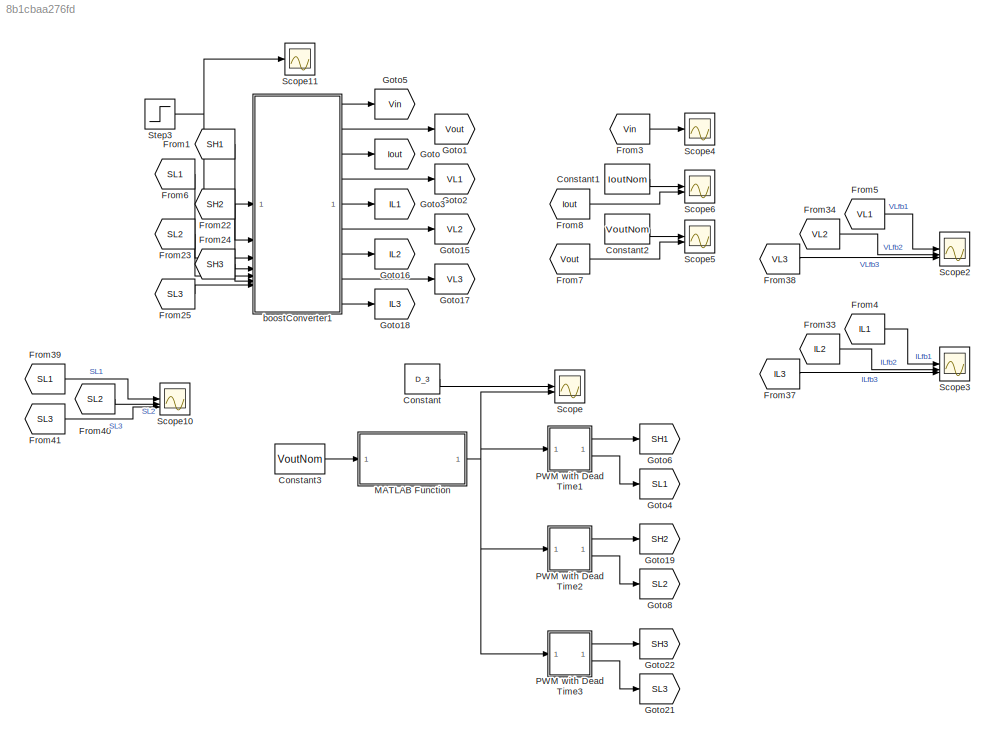
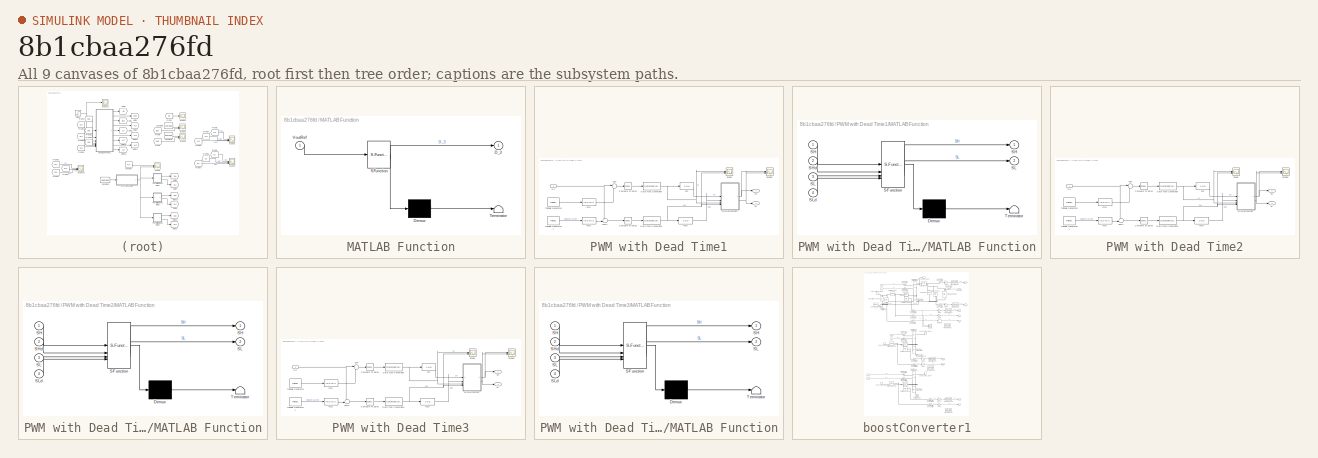
[diagram: thumbnail index - all 9 canvases of the model, root first then tree order]
MODEL slx_8b1cbaa276fd
KIND model
CONFIG AbsTol = auto
CONFIG EnableMultiTasking = off
CONFIG FixedStep = Tstep
CONFIG MaxStep = auto
CONFIG MinStep = auto
CONFIG RelTol = 1e-3
CONFIG SampleTimeConstraint = Unconstrained
CONFIG SolverName = ode14x
CONFIG StartTime = 0.0
CONFIG StopTime = 0.1
BLOCK [Constant] Constant
  Value = D_3
BLOCK [Constant] Constant1
  Value = IoutNom
BLOCK [Constant] Constant2
  Value = VoutNom
BLOCK [Constant] Constant3
  Value = VoutNom
BLOCK [From] From1
  GotoTag = SH1
BLOCK [From] From22
  GotoTag = SH2
BLOCK [From] From23
  GotoTag = SL2
BLOCK [From] From24
  GotoTag = SH3
BLOCK [From] From25
  GotoTag = SL3
BLOCK [From] From3
  GotoTag = Vin
BLOCK [From] From33
  GotoTag = IL2
BLOCK [From] From34
  GotoTag = VL2
BLOCK [From] From37
  GotoTag = IL3
BLOCK [From] From38
  GotoTag = VL3
BLOCK [From] From39
  GotoTag = SL1
BLOCK [From] From4
  GotoTag = IL1
BLOCK [From] From40
  GotoTag = SL2
BLOCK [From] From41
  GotoTag = SL3
BLOCK [From] From5
  GotoTag = VL1
BLOCK [From] From6
  GotoTag = SL1
BLOCK [From] From7
  GotoTag = Vout
BLOCK [From] From8
  GotoTag = Iout
BLOCK [Goto] Goto
  GotoTag = Iout
BLOCK [Goto] Goto1
  GotoTag = Vout
BLOCK [Goto] Goto15
  GotoTag = VL2
BLOCK [Goto] Goto16
  GotoTag = IL2
BLOCK [Goto] Goto17
  GotoTag = VL3
BLOCK [Goto] Goto18
  GotoTag = IL3
BLOCK [Goto] Goto19
  GotoTag = SH2
BLOCK [Goto] Goto2
  GotoTag = VL1
BLOCK [Goto] Goto21
  GotoTag = SL3
BLOCK [Goto] Goto22
  GotoTag = SH3
BLOCK [Goto] Goto3
  GotoTag = IL1
BLOCK [Goto] Goto4
  GotoTag = SL1
BLOCK [Goto] Goto5
  GotoTag = Vin
BLOCK [Goto] Goto6
  GotoTag = SH1
BLOCK [Goto] Goto8
  GotoTag = SL2
BLOCK [SubSystem] MATLAB Function
  ErrorFcn = Stateflow.Translate.translate
  PermitHierarchicalResolution = ExplicitOnly
  SFBlockType = MATLAB Function
  TreatAsAtomicUnit = on
BLOCK [Demux] MATLAB Function/ Demux 
  Outputs = 1
BLOCK [S-Function] MATLAB Function/ SFunction 
  EnableBusSupport = on
  FunctionName = sf_sfun
  Parameters = IoutNom,RserL,VinNom
  PortCounts = [1 2]
  SFcnIsStateOwnerBlock = off
  SFunctionDeploymentMode = off
  Tag = Stateflow S-Function 4
BLOCK [Terminator] MATLAB Function/ Terminator 
BLOCK [Outport] MATLAB Function/D_3
BLOCK [Inport] MATLAB Function/VoutRef
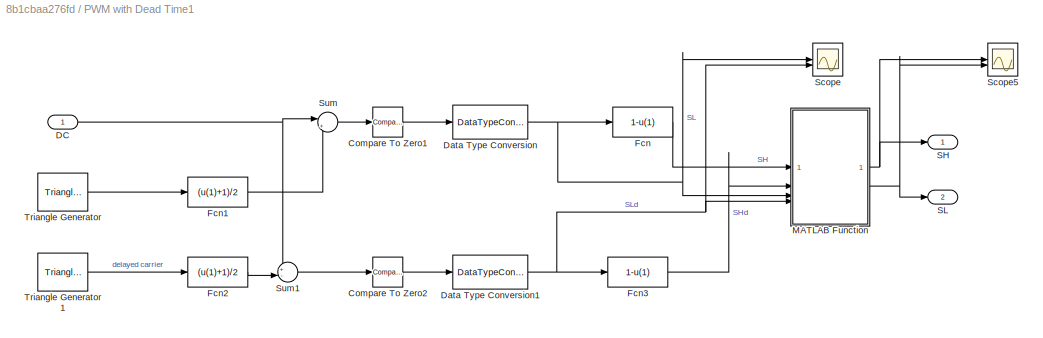
BLOCK [SubSystem] PWM with Dead Time1
BLOCK [Reference] PWM with Dead Time1/Compare To Zero1  REF=simulink/Logic and Bit
Operations/Compare
To Zero
  SourceBlock = simulink/Logic and Bit\nOperations/Compare\nTo Zero
  SourceType = Compare To Zero
BLOCK [Reference] PWM with Dead Time1/Compare To Zero2  REF=simulink/Logic and Bit
Operations/Compare
To Zero
  SourceBlock = simulink/Logic and Bit\nOperations/Compare\nTo Zero
  SourceType = Compare To Zero
BLOCK [Inport] PWM with Dead Time1/DC
BLOCK [DataTypeConversion] PWM with Dead Time1/Data Type Conversion
  RndMeth = Floor
  SaturateOnIntegerOverflow = off
BLOCK [DataTypeConversion] PWM with Dead Time1/Data Type Conversion1
  RndMeth = Floor
  SaturateOnIntegerOverflow = off
BLOCK [Fcn] PWM with Dead Time1/Fcn
  Expr = 1-u(1)
BLOCK [Fcn] PWM with Dead Time1/Fcn1
  Expr = (u(1)+1)/2
BLOCK [Fcn] PWM with Dead Time1/Fcn2
  Expr = (u(1)+1)/2
BLOCK [Fcn] PWM with Dead Time1/Fcn3
  Expr = 1-u(1)
BLOCK [SubSystem] PWM with Dead Time1/MATLAB Function
  ErrorFcn = Stateflow.Translate.translate
  PermitHierarchicalResolution = ExplicitOnly
  SFBlockType = MATLAB Function
  TreatAsAtomicUnit = on
BLOCK [Demux] PWM with Dead Time1/MATLAB Function/ Demux 
  Outputs = 1
BLOCK [S-Function] PWM with Dead Time1/MATLAB Function/ SFunction 
  EnableBusSupport = on
  FunctionName = sf_sfun
  PortCounts = [4 3]
  SFcnIsStateOwnerBlock = off
  SFunctionDeploymentMode = off
  Tag = Stateflow S-Function 2
BLOCK [Terminator] PWM with Dead Time1/MATLAB Function/ Terminator 
BLOCK [Outport] PWM with Dead Time1/MATLAB Function/SH
BLOCK [Inport] PWM with Dead Time1/MATLAB Function/SH 
BLOCK [Inport] PWM with Dead Time1/MATLAB Function/SHd
  Port = 2
BLOCK [Outport] PWM with Dead Time1/MATLAB Function/SL
  Port = 2
BLOCK [Inport] PWM with Dead Time1/MATLAB Function/SL 
  Port = 3
BLOCK [Inport] PWM with Dead Time1/MATLAB Function/SLd
  Port = 4
BLOCK [Outport] PWM with Dead Time1/SH
BLOCK [Outport] PWM with Dead Time1/SL
  Port = 2
BLOCK [Scope] PWM with Dead Time1/Scope
  Floating = off
  NameLocation = left
  NumInputPorts = 2
  ScopeSpecificationString = Simulink.scopes.TimeScopeBlockCfg('CurrentConfiguration', extmgr.ConfigurationSet(extmgr.Configuration('Core','General UI',true),extmgr.Configuration('Core','Source UI',true),extmgr.Configuration('Sources','WiredSimulink',true,'DataLoggingVariableName','ScopeData1'),extmgr.Configuration('Visuals','Time Domain',true,'SerializedDisplays',{struct('MinYLimReal','-0.125','MaxYLimReal','1.125','YLabelRe...<+1399ch>
BLOCK [Scope] PWM with Dead Time1/Scope5
  Floating = off
  NumInputPorts = 2
  ScopeSpecificationString = Simulink.scopes.TimeScopeBlockCfg('CurrentConfiguration', extmgr.ConfigurationSet(extmgr.Configuration('Core','General UI',true),extmgr.Configuration('Core','Source UI',true),extmgr.Configuration('Sources','WiredSimulink',true,'DataLoggingVariableName','ScopeData1'),extmgr.Configuration('Visuals','Time Domain',true,'SerializedDisplays',{struct('MinYLimReal','-0.125','MaxYLimReal','1.125','YLabelRe...<+1482ch>
BLOCK [Sum] PWM with Dead Time1/Sum
  Inputs = |+-
BLOCK [Sum] PWM with Dead Time1/Sum1
  Inputs = +-|
BLOCK [Reference] PWM with Dead Time1/Triangle Generator  REF=spsTriangleGeneratorLib/Triangle
Generator
  LibrarySourceBlock = sps_lib/Sources/Signal Generator Sources/Triangle\nGenerator
  SourceBlock = spsTriangleGeneratorLib/Triangle\nGenerator
  SourceType = Triangle Generator
BLOCK [Reference] PWM with Dead Time1/Triangle Generator1  REF=spsTriangleGeneratorLib/Triangle
Generator
  LibrarySourceBlock = sps_lib/Sources/Signal Generator Sources/Triangle\nGenerator
  SourceBlock = spsTriangleGeneratorLib/Triangle\nGenerator
  SourceType = Triangle Generator
BLOCK [SubSystem] PWM with Dead Time2
BLOCK [Reference] PWM with Dead Time2/Compare To Zero1  REF=simulink/Logic and Bit
Operations/Compare
To Zero
  SourceBlock = simulink/Logic and Bit\nOperations/Compare\nTo Zero
  SourceType = Compare To Zero
BLOCK [Reference] PWM with Dead Time2/Compare To Zero2  REF=simulink/Logic and Bit
Operations/Compare
To Zero
  SourceBlock = simulink/Logic and Bit\nOperations/Compare\nTo Zero
  SourceType = Compare To Zero
BLOCK [Inport] PWM with Dead Time2/DC
BLOCK [DataTypeConversion] PWM with Dead Time2/Data Type Conversion
  RndMeth = Floor
  SaturateOnIntegerOverflow = off
BLOCK [DataTypeConversion] PWM with Dead Time2/Data Type Conversion1
  RndMeth = Floor
  SaturateOnIntegerOverflow = off
BLOCK [Fcn] PWM with Dead Time2/Fcn
  Expr = 1-u(1)
BLOCK [Fcn] PWM with Dead Time2/Fcn1
  Expr = (u(1)+1)/2
BLOCK [Fcn] PWM with Dead Time2/Fcn2
  Expr = (u(1)+1)/2
BLOCK [Fcn] PWM with Dead Time2/Fcn3
  Expr = 1-u(1)
BLOCK [SubSystem] PWM with Dead Time2/MATLAB Function
  ErrorFcn = Stateflow.Translate.translate
  PermitHierarchicalResolution = ExplicitOnly
  SFBlockType = MATLAB Function
  TreatAsAtomicUnit = on
BLOCK [Demux] PWM with Dead Time2/MATLAB Function/ Demux 
  Outputs = 1
BLOCK [S-Function] PWM with Dead Time2/MATLAB Function/ SFunction 
  EnableBusSupport = on
  FunctionName = sf_sfun
  PortCounts = [4 3]
  SFcnIsStateOwnerBlock = off
  SFunctionDeploymentMode = off
  Tag = Stateflow S-Function 1
BLOCK [Terminator] PWM with Dead Time2/MATLAB Function/ Terminator 
BLOCK [Outport] PWM with Dead Time2/MATLAB Function/SH
BLOCK [Inport] PWM with Dead Time2/MATLAB Function/SH 
BLOCK [Inport] PWM with Dead Time2/MATLAB Function/SHd
  Port = 2
BLOCK [Outport] PWM with Dead Time2/MATLAB Function/SL
  Port = 2
BLOCK [Inport] PWM with Dead Time2/MATLAB Function/SL 
  Port = 3
BLOCK [Inport] PWM with Dead Time2/MATLAB Function/SLd
  Port = 4
BLOCK [Outport] PWM with Dead Time2/SH
BLOCK [Outport] PWM with Dead Time2/SL
  Port = 2
BLOCK [Scope] PWM with Dead Time2/Scope
  Floating = off
  NumInputPorts = 2
  ScopeSpecificationString = Simulink.scopes.TimeScopeBlockCfg('CurrentConfiguration', extmgr.ConfigurationSet(extmgr.Configuration('Core','General UI',true),extmgr.Configuration('Core','Source UI',true),extmgr.Configuration('Sources','WiredSimulink',true,'DataLoggingVariableName','ScopeData2'),extmgr.Configuration('Visuals','Time Domain',true,'SerializedDisplays',{struct('MinYLimReal','-0.125','MaxYLimReal','1.125','YLabelRe...<+1399ch>
BLOCK [Scope] PWM with Dead Time2/Scope5
  Floating = off
  NumInputPorts = 2
  ScopeSpecificationString = Simulink.scopes.TimeScopeBlockCfg('CurrentConfiguration', extmgr.ConfigurationSet(extmgr.Configuration('Core','General UI',true),extmgr.Configuration('Core','Source UI',true),extmgr.Configuration('Sources','WiredSimulink',true,'DataLoggingVariableName','ScopeData1'),extmgr.Configuration('Visuals','Time Domain',true,'SerializedDisplays',{struct('MinYLimReal','-0.125','MaxYLimReal','1.125','YLabelRe...<+1430ch>
BLOCK [Sum] PWM with Dead Time2/Sum
  Inputs = |+-
BLOCK [Sum] PWM with Dead Time2/Sum1
  Inputs = +-|
BLOCK [Reference] PWM with Dead Time2/Triangle Generator  REF=spsTriangleGeneratorLib/Triangle
Generator
  LibrarySourceBlock = sps_lib/Sources/Signal Generator Sources/Triangle\nGenerator
  SourceBlock = spsTriangleGeneratorLib/Triangle\nGenerator
  SourceType = Triangle Generator
BLOCK [Reference] PWM with Dead Time2/Triangle Generator1  REF=spsTriangleGeneratorLib/Triangle
Generator
  LibrarySourceBlock = sps_lib/Sources/Signal Generator Sources/Triangle\nGenerator
  SourceBlock = spsTriangleGeneratorLib/Triangle\nGenerator
  SourceType = Triangle Generator
BLOCK [SubSystem] PWM with Dead Time3
BLOCK [Reference] PWM with Dead Time3/Compare To Zero1  REF=simulink/Logic and Bit
Operations/Compare
To Zero
  SourceBlock = simulink/Logic and Bit\nOperations/Compare\nTo Zero
  SourceType = Compare To Zero
BLOCK [Reference] PWM with Dead Time3/Compare To Zero2  REF=simulink/Logic and Bit
Operations/Compare
To Zero
  SourceBlock = simulink/Logic and Bit\nOperations/Compare\nTo Zero
  SourceType = Compare To Zero
BLOCK [Inport] PWM with Dead Time3/DC
BLOCK [DataTypeConversion] PWM with Dead Time3/Data Type Conversion
  RndMeth = Floor
  SaturateOnIntegerOverflow = off
BLOCK [DataTypeConversion] PWM with Dead Time3/Data Type Conversion1
  RndMeth = Floor
  SaturateOnIntegerOverflow = off
BLOCK [Fcn] PWM with Dead Time3/Fcn
  Expr = 1-u(1)
BLOCK [Fcn] PWM with Dead Time3/Fcn1
  Expr = (u(1)+1)/2
BLOCK [Fcn] PWM with Dead Time3/Fcn2
  Expr = (u(1)+1)/2
BLOCK [Fcn] PWM with Dead Time3/Fcn3
  Expr = 1-u(1)
BLOCK [SubSystem] PWM with Dead Time3/MATLAB Function
  ErrorFcn = Stateflow.Translate.translate
  PermitHierarchicalResolution = ExplicitOnly
  SFBlockType = MATLAB Function
  TreatAsAtomicUnit = on
BLOCK [Demux] PWM with Dead Time3/MATLAB Function/ Demux 
  Outputs = 1
BLOCK [S-Function] PWM with Dead Time3/MATLAB Function/ SFunction 
  EnableBusSupport = on
  FunctionName = sf_sfun
  PortCounts = [4 3]
  SFcnIsStateOwnerBlock = off
  SFunctionDeploymentMode = off
  Tag = Stateflow S-Function 3
BLOCK [Terminator] PWM with Dead Time3/MATLAB Function/ Terminator 
BLOCK [Outport] PWM with Dead Time3/MATLAB Function/SH
BLOCK [Inport] PWM with Dead Time3/MATLAB Function/SH 
BLOCK [Inport] PWM with Dead Time3/MATLAB Function/SHd
  Port = 2
BLOCK [Outport] PWM with Dead Time3/MATLAB Function/SL
  Port = 2
BLOCK [Inport] PWM with Dead Time3/MATLAB Function/SL 
  Port = 3
BLOCK [Inport] PWM with Dead Time3/MATLAB Function/SLd
  Port = 4
BLOCK [Outport] PWM with Dead Time3/SH
BLOCK [Outport] PWM with Dead Time3/SL
  Port = 2
BLOCK [Scope] PWM with Dead Time3/Scope
  Floating = off
  NumInputPorts = 2
  ScopeSpecificationString = Simulink.scopes.TimeScopeBlockCfg('CurrentConfiguration', extmgr.ConfigurationSet(extmgr.Configuration('Core','General UI',true),extmgr.Configuration('Core','Source UI',true),extmgr.Configuration('Sources','WiredSimulink',true,'DataLoggingVariableName','ScopeData3'),extmgr.Configuration('Visuals','Time Domain',true,'SerializedDisplays',{struct('MinYLimReal','-0.125','MaxYLimReal','1.125','YLabelRe...<+1399ch>
BLOCK [Scope] PWM with Dead Time3/Scope5
  Floating = off
  NumInputPorts = 2
  ScopeSpecificationString = Simulink.scopes.TimeScopeBlockCfg('CurrentConfiguration', extmgr.ConfigurationSet(extmgr.Configuration('Core','General UI',true),extmgr.Configuration('Core','Source UI',true),extmgr.Configuration('Sources','WiredSimulink',true,'DataLoggingVariableName','ScopeData1'),extmgr.Configuration('Visuals','Time Domain',true,'SerializedDisplays',{struct('MinYLimReal','-0.125','MaxYLimReal','1.125','YLabelRe...<+1430ch>
BLOCK [Sum] PWM with Dead Time3/Sum
  Inputs = |+-
BLOCK [Sum] PWM with Dead Time3/Sum1
  Inputs = +-|
BLOCK [Reference] PWM with Dead Time3/Triangle Generator  REF=spsTriangleGeneratorLib/Triangle
Generator
  LibrarySourceBlock = sps_lib/Sources/Signal Generator Sources/Triangle\nGenerator
  SourceBlock = spsTriangleGeneratorLib/Triangle\nGenerator
  SourceType = Triangle Generator
BLOCK [Reference] PWM with Dead Time3/Triangle Generator1  REF=spsTriangleGeneratorLib/Triangle
Generator
  LibrarySourceBlock = sps_lib/Sources/Signal Generator Sources/Triangle\nGenerator
  SourceBlock = spsTriangleGeneratorLib/Triangle\nGenerator
  SourceType = Triangle Generator
BLOCK [Scope] Scope
  Floating = off
  NumInputPorts = 2
  ScopeSpecificationString = Simulink.scopes.TimeScopeBlockCfg('CurrentConfiguration', extmgr.ConfigurationSet(extmgr.Configuration('Core','General UI',true),extmgr.Configuration('Core','Source UI',true),extmgr.Configuration('Sources','WiredSimulink',true,'DataLoggingVariableName','ScopeData1'),extmgr.Configuration('Visuals','Time Domain',true,'SerializedDisplays',{struct('MinYLimReal','0.30128','MaxYLimReal','0.50128','YLabe...<+1472ch>
BLOCK [Scope] Scope10
  Floating = off
  NumInputPorts = 3
  ScopeSpecificationString = Simulink.scopes.TimeScopeBlockCfg('CurrentConfiguration', extmgr.ConfigurationSet(extmgr.Configuration('Core','General UI',true),extmgr.Configuration('Core','Source UI',true),extmgr.Configuration('Sources','WiredSimulink',true,'DataLoggingVariableName','ScopeData5'),extmgr.Configuration('Visuals','Time Domain',true,'SerializedDisplays',{struct('MinYLimReal','-0.125','MaxYLimReal','1.125','YLabelRe...<+1526ch>
BLOCK [Scope] Scope11
  Floating = off
  NumInputPorts = 1
  ScopeSpecificationString = Simulink.scopes.TimeScopeBlockCfg('CurrentConfiguration', extmgr.ConfigurationSet(extmgr.Configuration('Core','General UI',true),extmgr.Configuration('Core','Source UI',true),extmgr.Configuration('Sources','WiredSimulink',true,'DataLoggingVariableName','ScopeData1'),extmgr.Configuration('Visuals','Time Domain',true,'SerializedDisplays',{struct('MinYLimReal','14.58333','MaxYLimReal','35.41667','YLa...<+1459ch>
BLOCK [Scope] Scope2
  Floating = off
  NumInputPorts = 3
  ScopeSpecificationString = Simulink.scopes.TimeScopeBlockCfg('CurrentConfiguration', extmgr.ConfigurationSet(extmgr.Configuration('Core','General UI',true),extmgr.Configuration('Core','Source UI',true),extmgr.Configuration('Sources','WiredSimulink',true,'DataLoggingVariableName','ScopeData2'),extmgr.Configuration('Visuals','Time Domain',true,'SerializedDisplays',{struct('MinYLimReal','-420.56408','MaxYLimReal','455.301','YL...<+1455ch>
BLOCK [Scope] Scope3
  Floating = off
  NumInputPorts = 3
  ScopeSpecificationString = Simulink.scopes.TimeScopeBlockCfg('CurrentConfiguration', extmgr.ConfigurationSet(extmgr.Configuration('Core','General UI',true),extmgr.Configuration('Core','Source UI',true),extmgr.Configuration('Sources','WiredSimulink',true,'DataLoggingVariableName','ScopeData1'),extmgr.Configuration('Visuals','Time Domain',true,'SerializedDisplays',{struct('MinYLimReal','-2.02847','MaxYLimReal','-1.28618','YLa...<+1924ch>
BLOCK [Scope] Scope4
  Floating = off
  NumInputPorts = 1
  ScopeSpecificationString = Simulink.scopes.TimeScopeBlockCfg('CurrentConfiguration', extmgr.ConfigurationSet(extmgr.Configuration('Core','General UI',true),extmgr.Configuration('Core','Source UI',true),extmgr.Configuration('Sources','WiredSimulink',true,'DataLoggingVariableName','ScopeData4'),extmgr.Configuration('Visuals','Time Domain',true,'SerializedDisplays',{struct('MinYLimReal','-3.75','MaxYLimReal','33.75','YLabelRea...<+1439ch>
BLOCK [Scope] Scope5
  Floating = off
  NumInputPorts = 2
  ScopeSpecificationString = Simulink.scopes.TimeScopeBlockCfg('CurrentConfiguration', extmgr.ConfigurationSet(extmgr.Configuration('Core','General UI',true),extmgr.Configuration('Core','Source UI',true),extmgr.Configuration('Sources','WiredSimulink',true,'DataLoggingVariableName','ScopeData2'),extmgr.Configuration('Visuals','Time Domain',true,'SerializedDisplays',{struct('MinYLimReal','-10.06968','MaxYLimReal','90.62709','YL...<+1775ch>
BLOCK [Scope] Scope6
  Floating = off
  NumInputPorts = 2
  ScopeSpecificationString = Simulink.scopes.TimeScopeBlockCfg('CurrentConfiguration', extmgr.ConfigurationSet(extmgr.Configuration('Core','General UI',true),extmgr.Configuration('Core','Source UI',true),extmgr.Configuration('Sources','WiredSimulink',true,'DataLoggingVariableName','ScopeData3'),extmgr.Configuration('Visuals','Time Domain',true,'SerializedDisplays',{struct('MinYLimReal','-23.37738','MaxYLimReal','42.05289','YL...<+1516ch>
BLOCK [Step] Step3
  After = Rload*2
  Before = Rload
  SampleTime = 0
  Time = 0.1
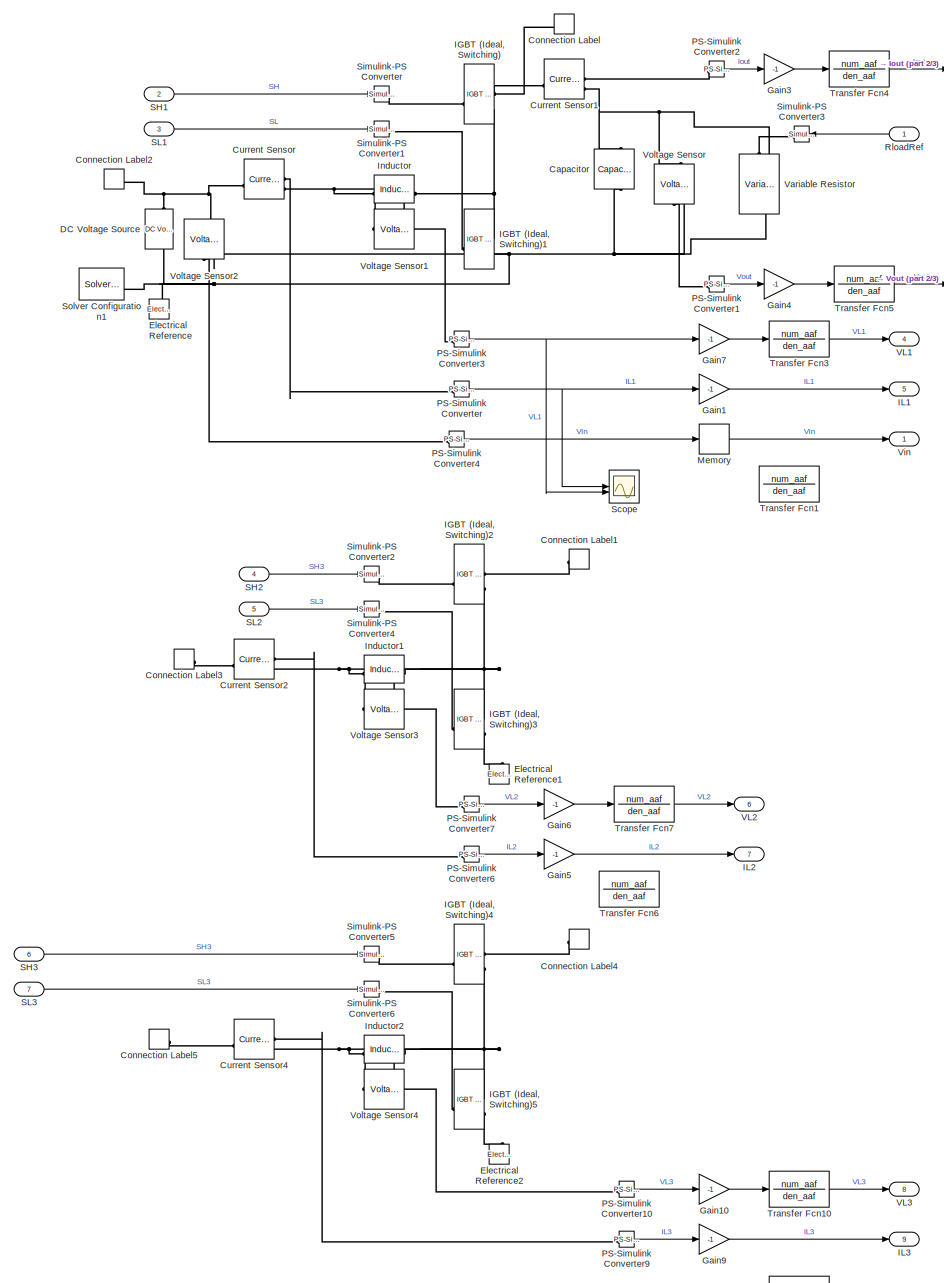
[diagram: boostConverter1 - part 1/3, most of the canvas]
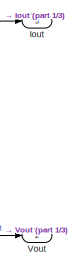
[diagram: boostConverter1 - part 2/3, top right region]
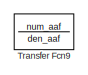
[diagram: boostConverter1 - part 3/3, bottom right region]
BLOCK [SubSystem] boostConverter1
BLOCK [Reference] boostConverter1/Capacitor  REF=fl_lib/Electrical/Electrical Elements/Capacitor
  NameLocation = left
  SourceBlock = fl_lib/Electrical/Electrical Elements/Capacitor
  SourceType = Capacitor
BLOCK [ConnectionLabel] boostConverter1/Connection Label
  Label = Vout_DClink
BLOCK [ConnectionLabel] boostConverter1/Connection Label1
  Label = Vout_DClink
BLOCK [ConnectionLabel] boostConverter1/Connection Label2
  Label = Vin
  NameLocation = top
BLOCK [ConnectionLabel] boostConverter1/Connection Label3
  Label = Vin
  NameLocation = top
BLOCK [ConnectionLabel] boostConverter1/Connection Label4
  Label = Vout_DClink
BLOCK [ConnectionLabel] boostConverter1/Connection Label5
  Label = Vin
  NameLocation = top
BLOCK [Reference] boostConverter1/Current Sensor  REF=fl_lib/Electrical/Electrical Sensors/Current Sensor
  LibrarySourceBlock = ee_lib/Sensors &\nTransducers/Current Sensor
  SourceBlock = fl_lib/Electrical/Electrical Sensors/Current Sensor
  SourceType = Current Sensor
BLOCK [Reference] boostConverter1/Current Sensor1  REF=fl_lib/Electrical/Electrical Sensors/Current Sensor
  LibrarySourceBlock = ee_lib/Sensors &\nTransducers/Current Sensor
  SourceBlock = fl_lib/Electrical/Electrical Sensors/Current Sensor
  SourceType = Current Sensor
BLOCK [Reference] boostConverter1/Current Sensor2  REF=fl_lib/Electrical/Electrical Sensors/Current Sensor
  LibrarySourceBlock = ee_lib/Sensors &\nTransducers/Current Sensor
  SourceBlock = fl_lib/Electrical/Electrical Sensors/Current Sensor
  SourceType = Current Sensor
BLOCK [Reference] boostConverter1/Current Sensor4  REF=fl_lib/Electrical/Electrical Sensors/Current Sensor
  LibrarySourceBlock = ee_lib/Sensors &\nTransducers/Current Sensor
  SourceBlock = fl_lib/Electrical/Electrical Sensors/Current Sensor
  SourceType = Current Sensor
BLOCK [Reference] boostConverter1/DC Voltage Source  REF=fl_lib/Electrical/Electrical Sources/DC Voltage Source
  NameLocation = right
  SourceBlock = fl_lib/Electrical/Electrical Sources/DC Voltage Source
  SourceType = DC Voltage Source
BLOCK [Reference] boostConverter1/Electrical Reference  REF=fl_lib/Electrical/Electrical Elements/Electrical Reference
  NameLocation = right
  SourceBlock = fl_lib/Electrical/Electrical Elements/Electrical Reference
  SourceType = Electrical Reference
BLOCK [Reference] boostConverter1/Electrical Reference1  REF=fl_lib/Electrical/Electrical Elements/Electrical Reference
  NameLocation = right
  SourceBlock = fl_lib/Electrical/Electrical Elements/Electrical Reference
  SourceType = Electrical Reference
BLOCK [Reference] boostConverter1/Electrical Reference2  REF=fl_lib/Electrical/Electrical Elements/Electrical Reference
  NameLocation = right
  SourceBlock = fl_lib/Electrical/Electrical Elements/Electrical Reference
  SourceType = Electrical Reference
BLOCK [Gain] boostConverter1/Gain1
  Gain = -1
BLOCK [Gain] boostConverter1/Gain10
  Gain = -1
BLOCK [Gain] boostConverter1/Gain3
  Gain = -1
BLOCK [Gain] boostConverter1/Gain4
  Gain = -1
BLOCK [Gain] boostConverter1/Gain5
  Gain = -1
BLOCK [Gain] boostConverter1/Gain6
  Gain = -1
BLOCK [Gain] boostConverter1/Gain7
  Gain = -1
BLOCK [Gain] boostConverter1/Gain9
  Gain = -1
BLOCK [Reference] boostConverter1/IGBT (Ideal, Switching)  REF=ee_lib/Semiconductors &
Converters/IGBT
(Ideal,
Switching)
  SourceBlock = ee_lib/Semiconductors &\nConverters/IGBT\n(Ideal,\nSwitching)
  SourceType = IGBT\n(Ideal,\nSwitching)
BLOCK [Reference] boostConverter1/IGBT (Ideal, Switching)1  REF=ee_lib/Semiconductors &
Converters/IGBT
(Ideal,
Switching)
  SourceBlock = ee_lib/Semiconductors &\nConverters/IGBT\n(Ideal,\nSwitching)
  SourceType = IGBT\n(Ideal,\nSwitching)
BLOCK [Reference] boostConverter1/IGBT (Ideal, Switching)2  REF=ee_lib/Semiconductors &
Converters/IGBT
(Ideal,
Switching)
  SourceBlock = ee_lib/Semiconductors &\nConverters/IGBT\n(Ideal,\nSwitching)
  SourceType = IGBT\n(Ideal,\nSwitching)
BLOCK [Reference] boostConverter1/IGBT (Ideal, Switching)3  REF=ee_lib/Semiconductors &
Converters/IGBT
(Ideal,
Switching)
  SourceBlock = ee_lib/Semiconductors &\nConverters/IGBT\n(Ideal,\nSwitching)
  SourceType = IGBT\n(Ideal,\nSwitching)
BLOCK [Reference] boostConverter1/IGBT (Ideal, Switching)4  REF=ee_lib/Semiconductors &
Converters/IGBT
(Ideal,
Switching)
  SourceBlock = ee_lib/Semiconductors &\nConverters/IGBT\n(Ideal,\nSwitching)
  SourceType = IGBT\n(Ideal,\nSwitching)
BLOCK [Reference] boostConverter1/IGBT (Ideal, Switching)5  REF=ee_lib/Semiconductors &
Converters/IGBT
(Ideal,
Switching)
  SourceBlock = ee_lib/Semiconductors &\nConverters/IGBT\n(Ideal,\nSwitching)
  SourceType = IGBT\n(Ideal,\nSwitching)
BLOCK [Outport] boostConverter1/IL1
  Port = 5
BLOCK [Outport] boostConverter1/IL2
  Port = 7
BLOCK [Outport] boostConverter1/IL3
  Port = 9
BLOCK [Reference] boostConverter1/Inductor  REF=fl_lib/Electrical/Electrical Elements/Inductor
  SourceBlock = fl_lib/Electrical/Electrical Elements/Inductor
  SourceType = Inductor
BLOCK [Reference] boostConverter1/Inductor1  REF=fl_lib/Electrical/Electrical Elements/Inductor
  SourceBlock = fl_lib/Electrical/Electrical Elements/Inductor
  SourceType = Inductor
BLOCK [Reference] boostConverter1/Inductor2  REF=fl_lib/Electrical/Electrical Elements/Inductor
  SourceBlock = fl_lib/Electrical/Electrical Elements/Inductor
  SourceType = Inductor
BLOCK [Outport] boostConverter1/Iout
  Port = 3
BLOCK [Memory] boostConverter1/Memory
BLOCK [Reference] boostConverter1/PS-Simulink Converter  REF=nesl_utility/PS-Simulink
Converter
  SourceBlock = nesl_utility/PS-Simulink\nConverter
  SourceType = PS-Simulink\nConverter
BLOCK [Reference] boostConverter1/PS-Simulink Converter1  REF=nesl_utility/PS-Simulink
Converter
  SourceBlock = nesl_utility/PS-Simulink\nConverter
  SourceType = PS-Simulink\nConverter
BLOCK [Reference] boostConverter1/PS-Simulink Converter10  REF=nesl_utility/PS-Simulink
Converter
  SourceBlock = nesl_utility/PS-Simulink\nConverter
  SourceType = PS-Simulink\nConverter
BLOCK [Reference] boostConverter1/PS-Simulink Converter2  REF=nesl_utility/PS-Simulink
Converter
  SourceBlock = nesl_utility/PS-Simulink\nConverter
  SourceType = PS-Simulink\nConverter
BLOCK [Reference] boostConverter1/PS-Simulink Converter3  REF=nesl_utility/PS-Simulink
Converter
  SourceBlock = nesl_utility/PS-Simulink\nConverter
  SourceType = PS-Simulink\nConverter
BLOCK [Reference] boostConverter1/PS-Simulink Converter4  REF=nesl_utility/PS-Simulink
Converter
  SourceBlock = nesl_utility/PS-Simulink\nConverter
  SourceType = PS-Simulink\nConverter
BLOCK [Reference] boostConverter1/PS-Simulink Converter6  REF=nesl_utility/PS-Simulink
Converter
  SourceBlock = nesl_utility/PS-Simulink\nConverter
  SourceType = PS-Simulink\nConverter
BLOCK [Reference] boostConverter1/PS-Simulink Converter7  REF=nesl_utility/PS-Simulink
Converter
  SourceBlock = nesl_utility/PS-Simulink\nConverter
  SourceType = PS-Simulink\nConverter
BLOCK [Reference] boostConverter1/PS-Simulink Converter9  REF=nesl_utility/PS-Simulink
Converter
  SourceBlock = nesl_utility/PS-Simulink\nConverter
  SourceType = PS-Simulink\nConverter
BLOCK [Inport] boostConverter1/RloadRef
  NameLocation = top
BLOCK [Inport] boostConverter1/SH1
  Port = 2
BLOCK [Inport] boostConverter1/SH2
  Port = 4
BLOCK [Inport] boostConverter1/SH3
  Port = 6
BLOCK [Inport] boostConverter1/SL1
  Port = 3
BLOCK [Inport] boostConverter1/SL2
  Port = 5
BLOCK [Inport] boostConverter1/SL3
  Port = 7
BLOCK [Scope] boostConverter1/Scope
  Floating = off
  NumInputPorts = 2
  ScopeSpecificationString = Simulink.scopes.TimeScopeBlockCfg('CurrentConfiguration', extmgr.ConfigurationSet(extmgr.Configuration('Core','General UI',true),extmgr.Configuration('Core','Source UI',true),extmgr.Configuration('Sources','WiredSimulink',true,'DataLoggingVariableName','ScopeData1'),extmgr.Configuration('Visuals','Time Domain',true,'SerializedDisplays',{struct('MinYLimReal','-25.63474','MaxYLimReal','35.29125','YL...<+1942ch>
BLOCK [Reference] boostConverter1/Simulink-PS Converter  REF=nesl_utility/Simulink-PS
Converter
  SourceBlock = nesl_utility/Simulink-PS\nConverter
  SourceType = Simulink-PS\nConverter
BLOCK [Reference] boostConverter1/Simulink-PS Converter1  REF=nesl_utility/Simulink-PS
Converter
  SourceBlock = nesl_utility/Simulink-PS\nConverter
  SourceType = Simulink-PS\nConverter
BLOCK [Reference] boostConverter1/Simulink-PS Converter2  REF=nesl_utility/Simulink-PS
Converter
  SourceBlock = nesl_utility/Simulink-PS\nConverter
  SourceType = Simulink-PS\nConverter
BLOCK [Reference] boostConverter1/Simulink-PS Converter3  REF=nesl_utility/Simulink-PS
Converter
  SourceBlock = nesl_utility/Simulink-PS\nConverter
  SourceType = Simulink-PS\nConverter
BLOCK [Reference] boostConverter1/Simulink-PS Converter4  REF=nesl_utility/Simulink-PS
Converter
  SourceBlock = nesl_utility/Simulink-PS\nConverter
  SourceType = Simulink-PS\nConverter
BLOCK [Reference] boostConverter1/Simulink-PS Converter5  REF=nesl_utility/Simulink-PS
Converter
  SourceBlock = nesl_utility/Simulink-PS\nConverter
  SourceType = Simulink-PS\nConverter
BLOCK [Reference] boostConverter1/Simulink-PS Converter6  REF=nesl_utility/Simulink-PS
Converter
  SourceBlock = nesl_utility/Simulink-PS\nConverter
  SourceType = Simulink-PS\nConverter
BLOCK [Reference] boostConverter1/Solver Configuration1  REF=nesl_utility/Solver
Configuration
  SourceBlock = nesl_utility/Solver\nConfiguration
  SourceType = Solver\nConfiguration
BLOCK [TransferFcn] boostConverter1/Transfer Fcn1
  Denominator = den_aaf
  Numerator = num_aaf
BLOCK [TransferFcn] boostConverter1/Transfer Fcn10
  Denominator = den_aaf
  Numerator = num_aaf
BLOCK [TransferFcn] boostConverter1/Transfer Fcn3
  Denominator = den_aaf
  Numerator = num_aaf
BLOCK [TransferFcn] boostConverter1/Transfer Fcn4
  Denominator = den_aaf
  Numerator = num_aaf
BLOCK [TransferFcn] boostConverter1/Transfer Fcn5
  Denominator = den_aaf
  Numerator = num_aaf
BLOCK [TransferFcn] boostConverter1/Transfer Fcn6
  Denominator = den_aaf
  Numerator = num_aaf
BLOCK [TransferFcn] boostConverter1/Transfer Fcn7
  Denominator = den_aaf
  Numerator = num_aaf
BLOCK [TransferFcn] boostConverter1/Transfer Fcn9
  Denominator = den_aaf
  Numerator = num_aaf
BLOCK [Outport] boostConverter1/VL1
  Port = 4
BLOCK [Outport] boostConverter1/VL2
  Port = 6
BLOCK [Outport] boostConverter1/VL3
  Port = 8
BLOCK [Reference] boostConverter1/Variable Resistor  REF=fl_lib/Electrical/Electrical Elements/Variable Resistor
  NameLocation = left
  SourceBlock = fl_lib/Electrical/Electrical Elements/Variable Resistor
  SourceType = Variable Resistor
BLOCK [Outport] boostConverter1/Vin
BLOCK [Reference] boostConverter1/Voltage Sensor  REF=fl_lib/Electrical/Electrical Sensors/Voltage Sensor
  LibrarySourceBlock = ee_lib/Sensors &\nTransducers/Voltage Sensor
  NameLocation = right
  SourceBlock = fl_lib/Electrical/Electrical Sensors/Voltage Sensor
  SourceType = Voltage Sensor
BLOCK [Reference] boostConverter1/Voltage Sensor1  REF=fl_lib/Electrical/Electrical Sensors/Voltage Sensor
  LibrarySourceBlock = ee_lib/Sensors &\nTransducers/Voltage Sensor
  NameLocation = top
  SourceBlock = fl_lib/Electrical/Electrical Sensors/Voltage Sensor
  SourceType = Voltage Sensor
BLOCK [Reference] boostConverter1/Voltage Sensor2  REF=fl_lib/Electrical/Electrical Sensors/Voltage Sensor
  LibrarySourceBlock = ee_lib/Sensors &\nTransducers/Voltage Sensor
  NameLocation = right
  SourceBlock = fl_lib/Electrical/Electrical Sensors/Voltage Sensor
  SourceType = Voltage Sensor
BLOCK [Reference] boostConverter1/Voltage Sensor3  REF=fl_lib/Electrical/Electrical Sensors/Voltage Sensor
  LibrarySourceBlock = ee_lib/Sensors &\nTransducers/Voltage Sensor
  NameLocation = top
  SourceBlock = fl_lib/Electrical/Electrical Sensors/Voltage Sensor
  SourceType = Voltage Sensor
BLOCK [Reference] boostConverter1/Voltage Sensor4  REF=fl_lib/Electrical/Electrical Sensors/Voltage Sensor
  LibrarySourceBlock = ee_lib/Sensors &\nTransducers/Voltage Sensor
  NameLocation = top
  SourceBlock = fl_lib/Electrical/Electrical Sensors/Voltage Sensor
  SourceType = Voltage Sensor
BLOCK [Outport] boostConverter1/Vout
  Port = 2
LINE Constant1:1 -> Scope6:1
LINE Constant2:1 -> Scope5:1
LINE Constant3:1 -> MATLAB Function:1
LINE Constant:1 -> Scope:1
LINE From1:1 -> boostConverter1:2
LINE From22:1 -> boostConverter1:4
LINE From23:1 -> boostConverter1:5
LINE From24:1 -> boostConverter1:6
LINE From25:1 -> boostConverter1:7
LINE From33:1 -> Scope3:2
LINE From34:1 -> Scope2:2
LINE From37:1 -> Scope3:3
LINE From38:1 -> Scope2:3
LINE From39:1 -> Scope10:1
LINE From3:1 -> Scope4:1
LINE From40:1 -> Scope10:2
LINE From41:1 -> Scope10:3
LINE From4:1 -> Scope3:1
LINE From5:1 -> Scope2:1
LINE From6:1 -> boostConverter1:3
LINE From7:1 -> Scope5:2
LINE From8:1 -> Scope6:2
NET MATLAB Function:1 -> PWM with Dead Time1:1, PWM with Dead Time2:1, PWM with Dead Time3:1, Scope:2
LINE PWM with Dead Time1/Compare To Zero1:1 -> PWM with Dead Time1/Data Type Conversion:1
LINE PWM with Dead Time1/Compare To Zero2:1 -> PWM with Dead Time1/Data Type Conversion1:1
NET PWM with Dead Time1/DC:1 -> PWM with Dead Time1/Sum1:1, PWM with Dead Time1/Sum:1
NET PWM with Dead Time1/Data Type Conversion1:1 -> PWM with Dead Time1/Fcn3:1, PWM with Dead Time1/MATLAB Function:4, PWM with Dead Time1/Scope:2
NET PWM with Dead Time1/Data Type Conversion:1 -> PWM with Dead Time1/Fcn:1, PWM with Dead Time1/MATLAB Function:3, PWM with Dead Time1/Scope:1
LINE PWM with Dead Time1/Fcn1:1 -> PWM with Dead Time1/Sum:2
LINE PWM with Dead Time1/Fcn2:1 -> PWM with Dead Time1/Sum1:2
LINE PWM with Dead Time1/Fcn3:1 -> PWM with Dead Time1/MATLAB Function:2
LINE PWM with Dead Time1/Fcn:1 -> PWM with Dead Time1/MATLAB Function:1
NET PWM with Dead Time1/MATLAB Function:1 -> PWM with Dead Time1/SH:1, PWM with Dead Time1/Scope5:1
NET PWM with Dead Time1/MATLAB Function:2 -> PWM with Dead Time1/SL:1, PWM with Dead Time1/Scope5:2
LINE PWM with Dead Time1/Sum1:1 -> PWM with Dead Time1/Compare To Zero2:1
LINE PWM with Dead Time1/Sum:1 -> PWM with Dead Time1/Compare To Zero1:1
LINE PWM with Dead Time1/Triangle Generator1:1 -> PWM with Dead Time1/Fcn2:1
LINE PWM with Dead Time1/Triangle Generator:1 -> PWM with Dead Time1/Fcn1:1
LINE PWM with Dead Time1:1 -> Goto6:1
LINE PWM with Dead Time1:2 -> Goto4:1
LINE PWM with Dead Time2/Compare To Zero1:1 -> PWM with Dead Time2/Data Type Conversion:1
LINE PWM with Dead Time2/Compare To Zero2:1 -> PWM with Dead Time2/Data Type Conversion1:1
NET PWM with Dead Time2/DC:1 -> PWM with Dead Time2/Sum1:1, PWM with Dead Time2/Sum:1
NET PWM with Dead Time2/Data Type Conversion1:1 -> PWM with Dead Time2/Fcn3:1, PWM with Dead Time2/MATLAB Function:4, PWM with Dead Time2/Scope:2
NET PWM with Dead Time2/Data Type Conversion:1 -> PWM with Dead Time2/Fcn:1, PWM with Dead Time2/MATLAB Function:3, PWM with Dead Time2/Scope:1
LINE PWM with Dead Time2/Fcn1:1 -> PWM with Dead Time2/Sum:2
LINE PWM with Dead Time2/Fcn2:1 -> PWM with Dead Time2/Sum1:2
LINE PWM with Dead Time2/Fcn3:1 -> PWM with Dead Time2/MATLAB Function:2
LINE PWM with Dead Time2/Fcn:1 -> PWM with Dead Time2/MATLAB Function:1
NET PWM with Dead Time2/MATLAB Function:1 -> PWM with Dead Time2/SH:1, PWM with Dead Time2/Scope5:1
NET PWM with Dead Time2/MATLAB Function:2 -> PWM with Dead Time2/SL:1, PWM with Dead Time2/Scope5:2
LINE PWM with Dead Time2/Sum1:1 -> PWM with Dead Time2/Compare To Zero2:1
LINE PWM with Dead Time2/Sum:1 -> PWM with Dead Time2/Compare To Zero1:1
LINE PWM with Dead Time2/Triangle Generator1:1 -> PWM with Dead Time2/Fcn2:1
LINE PWM with Dead Time2/Triangle Generator:1 -> PWM with Dead Time2/Fcn1:1
LINE PWM with Dead Time2:1 -> Goto19:1
LINE PWM with Dead Time2:2 -> Goto8:1
LINE PWM with Dead Time3/Compare To Zero1:1 -> PWM with Dead Time3/Data Type Conversion:1
LINE PWM with Dead Time3/Compare To Zero2:1 -> PWM with Dead Time3/Data Type Conversion1:1
NET PWM with Dead Time3/DC:1 -> PWM with Dead Time3/Sum1:1, PWM with Dead Time3/Sum:1
NET PWM with Dead Time3/Data Type Conversion1:1 -> PWM with Dead Time3/Fcn3:1, PWM with Dead Time3/MATLAB Function:4, PWM with Dead Time3/Scope:2
NET PWM with Dead Time3/Data Type Conversion:1 -> PWM with Dead Time3/Fcn:1, PWM with Dead Time3/MATLAB Function:3, PWM with Dead Time3/Scope:1
LINE PWM with Dead Time3/Fcn1:1 -> PWM with Dead Time3/Sum:2
LINE PWM with Dead Time3/Fcn2:1 -> PWM with Dead Time3/Sum1:2
LINE PWM with Dead Time3/Fcn3:1 -> PWM with Dead Time3/MATLAB Function:2
LINE PWM with Dead Time3/Fcn:1 -> PWM with Dead Time3/MATLAB Function:1
NET PWM with Dead Time3/MATLAB Function:1 -> PWM with Dead Time3/SH:1, PWM with Dead Time3/Scope5:1
NET PWM with Dead Time3/MATLAB Function:2 -> PWM with Dead Time3/SL:1, PWM with Dead Time3/Scope5:2
LINE PWM with Dead Time3/Sum1:1 -> PWM with Dead Time3/Compare To Zero2:1
LINE PWM with Dead Time3/Sum:1 -> PWM with Dead Time3/Compare To Zero1:1
LINE PWM with Dead Time3/Triangle Generator1:1 -> PWM with Dead Time3/Fcn2:1
LINE PWM with Dead Time3/Triangle Generator:1 -> PWM with Dead Time3/Fcn1:1
LINE PWM with Dead Time3:1 -> Goto22:1
LINE PWM with Dead Time3:2 -> Goto21:1
NET Step3:1 -> Scope11:1, boostConverter1:1
LINE boostConverter1/Gain10:1 -> boostConverter1/Transfer Fcn10:1
LINE boostConverter1/Gain1:1 -> boostConverter1/IL1:1
LINE boostConverter1/Gain3:1 -> boostConverter1/Transfer Fcn4:1
LINE boostConverter1/Gain4:1 -> boostConverter1/Transfer Fcn5:1
LINE boostConverter1/Gain5:1 -> boostConverter1/IL2:1
LINE boostConverter1/Gain6:1 -> boostConverter1/Transfer Fcn7:1
LINE boostConverter1/Gain7:1 -> boostConverter1/Transfer Fcn3:1
LINE boostConverter1/Gain9:1 -> boostConverter1/IL3:1
LINE boostConverter1/Memory:1 -> boostConverter1/Vin:1
LINE boostConverter1/PS-Simulink Converter10:1 -> boostConverter1/Gain10:1
LINE boostConverter1/PS-Simulink Converter1:1 -> boostConverter1/Gain4:1
LINE boostConverter1/PS-Simulink Converter2:1 -> boostConverter1/Gain3:1
NET boostConverter1/PS-Simulink Converter3:1 -> boostConverter1/Gain7:1, boostConverter1/Scope:2
LINE boostConverter1/PS-Simulink Converter4:1 -> boostConverter1/Memory:1
LINE boostConverter1/PS-Simulink Converter6:1 -> boostConverter1/Gain5:1
LINE boostConverter1/PS-Simulink Converter7:1 -> boostConverter1/Gain6:1
LINE boostConverter1/PS-Simulink Converter9:1 -> boostConverter1/Gain9:1
NET boostConverter1/PS-Simulink Converter:1 -> boostConverter1/Gain1:1, boostConverter1/Scope:1
LINE boostConverter1/RloadRef:1 -> boostConverter1/Simulink-PS Converter3:1
LINE boostConverter1/SH1:1 -> boostConverter1/Simulink-PS Converter:1
LINE boostConverter1/SH2:1 -> boostConverter1/Simulink-PS Converter2:1
LINE boostConverter1/SH3:1 -> boostConverter1/Simulink-PS Converter5:1
LINE boostConverter1/SL1:1 -> boostConverter1/Simulink-PS Converter1:1
LINE boostConverter1/SL2:1 -> boostConverter1/Simulink-PS Converter4:1
LINE boostConverter1/SL3:1 -> boostConverter1/Simulink-PS Converter6:1
LINE boostConverter1/Transfer Fcn10:1 -> boostConverter1/VL3:1
LINE boostConverter1/Transfer Fcn3:1 -> boostConverter1/VL1:1
LINE boostConverter1/Transfer Fcn4:1 -> boostConverter1/Iout:1
LINE boostConverter1/Transfer Fcn5:1 -> boostConverter1/Vout:1
LINE boostConverter1/Transfer Fcn7:1 -> boostConverter1/VL2:1
LINE boostConverter1:1 -> Goto5:1
LINE boostConverter1:2 -> Goto1:1
LINE boostConverter1:3 -> Goto:1
LINE boostConverter1:4 -> Goto2:1
LINE boostConverter1:5 -> Goto3:1
LINE boostConverter1:6 -> Goto15:1
LINE boostConverter1:7 -> Goto16:1
LINE boostConverter1:8 -> Goto17:1
LINE boostConverter1:9 -> Goto18:1
PNET net1: boostConverter1/Capacitor:LConn1 -- boostConverter1/Current Sensor1:RConn2 -- boostConverter1/Variable Resistor:LConn2 -- boostConverter1/Voltage Sensor:LConn1
PNET net2: boostConverter1/Capacitor:RConn1 -- boostConverter1/DC Voltage Source:RConn1 -- boostConverter1/Electrical Reference:LConn1 -- boostConverter1/IGBT (Ideal, Switching)1:RConn2 -- boostConverter1/Solver Configuration1:RConn1 -- boostConverter1/Variable Resistor:RConn1 -- boostConverter1/Voltage Sensor2:RConn2 -- boostConverter1/Voltage Sensor:RConn2
PLINE boostConverter1/Connection Label1:LConn1 -- boostConverter1/IGBT (Ideal, Switching)2:RConn1
PNET net3: boostConverter1/Connection Label2:LConn1 -- boostConverter1/Current Sensor:LConn1 -- boostConverter1/DC Voltage Source:LConn1 -- boostConverter1/Voltage Sensor2:LConn1
PLINE boostConverter1/Connection Label3:LConn1 -- boostConverter1/Current Sensor2:LConn1
PLINE boostConverter1/Connection Label4:LConn1 -- boostConverter1/IGBT (Ideal, Switching)4:RConn1
PLINE boostConverter1/Connection Label5:LConn1 -- boostConverter1/Current Sensor4:LConn1
PNET net4: boostConverter1/Connection Label:LConn1 -- boostConverter1/Current Sensor1:LConn1 -- boostConverter1/IGBT (Ideal, Switching):RConn1
PLINE boostConverter1/Current Sensor1:RConn1 -- boostConverter1/PS-Simulink Converter2:LConn1
PLINE boostConverter1/Current Sensor2:RConn1 -- boostConverter1/PS-Simulink Converter6:LConn1
PNET net5: boostConverter1/Current Sensor2:RConn2 -- boostConverter1/Inductor1:LConn1 -- boostConverter1/Voltage Sensor3:LConn1
PLINE boostConverter1/Current Sensor4:RConn1 -- boostConverter1/PS-Simulink Converter9:LConn1
PNET net6: boostConverter1/Current Sensor4:RConn2 -- boostConverter1/Inductor2:LConn1 -- boostConverter1/Voltage Sensor4:LConn1
PLINE boostConverter1/Current Sensor:RConn1 -- boostConverter1/PS-Simulink Converter:LConn1
PNET net7: boostConverter1/Current Sensor:RConn2 -- boostConverter1/Inductor:LConn1 -- boostConverter1/Voltage Sensor1:LConn1
PLINE boostConverter1/Electrical Reference1:LConn1 -- boostConverter1/IGBT (Ideal, Switching)3:RConn2
PLINE boostConverter1/Electrical Reference2:LConn1 -- boostConverter1/IGBT (Ideal, Switching)5:RConn2
PLINE boostConverter1/IGBT (Ideal, Switching)1:LConn1 -- boostConverter1/Simulink-PS Converter1:RConn1
PNET net8: boostConverter1/IGBT (Ideal, Switching)1:RConn1 -- boostConverter1/IGBT (Ideal, Switching):RConn2 -- boostConverter1/Inductor:RConn1 -- boostConverter1/Voltage Sensor1:RConn2
PLINE boostConverter1/IGBT (Ideal, Switching)2:LConn1 -- boostConverter1/Simulink-PS Converter2:RConn1
PNET net9: boostConverter1/IGBT (Ideal, Switching)2:RConn2 -- boostConverter1/IGBT (Ideal, Switching)3:RConn1 -- boostConverter1/Inductor1:RConn1 -- boostConverter1/Voltage Sensor3:RConn2
PLINE boostConverter1/IGBT (Ideal, Switching)3:LConn1 -- boostConverter1/Simulink-PS Converter4:RConn1
PLINE boostConverter1/IGBT (Ideal, Switching)4:LConn1 -- boostConverter1/Simulink-PS Converter5:RConn1
PNET net10: boostConverter1/IGBT (Ideal, Switching)4:RConn2 -- boostConverter1/IGBT (Ideal, Switching)5:RConn1 -- boostConverter1/Inductor2:RConn1 -- boostConverter1/Voltage Sensor4:RConn2
PLINE boostConverter1/IGBT (Ideal, Switching)5:LConn1 -- boostConverter1/Simulink-PS Converter6:RConn1
PLINE boostConverter1/IGBT (Ideal, Switching):LConn1 -- boostConverter1/Simulink-PS Converter:RConn1
PLINE boostConverter1/PS-Simulink Converter10:LConn1 -- boostConverter1/Voltage Sensor4:RConn1
PLINE boostConverter1/PS-Simulink Converter1:LConn1 -- boostConverter1/Voltage Sensor:RConn1
PLINE boostConverter1/PS-Simulink Converter3:LConn1 -- boostConverter1/Voltage Sensor1:RConn1
PLINE boostConverter1/PS-Simulink Converter4:LConn1 -- boostConverter1/Voltage Sensor2:RConn1
PLINE boostConverter1/PS-Simulink Converter7:LConn1 -- boostConverter1/Voltage Sensor3:RConn1
PLINE boostConverter1/Simulink-PS Converter3:RConn1 -- boostConverter1/Variable Resistor:LConn1
note: NET lines group one-source signal fan-out (src -> all destinations, sorted); 1:1 wires keep LINE; PNET lines group multi-terminal physical nets as a canonical sorted terminal list (undirected conserving connections); 2-terminal nets keep the pairwise PLINE form
CHART PWM with Dead Time2/MATLAB Function states=1 transitions=1
  STATE_LABEL 'eML_blk_kernel()'
  STATE_LABEL 'SCRIPT:\nfunction [SH,SL] = fcn(SH,SHd,SL,SLd)\n\nif SHd + SH > 1\n    SH = 1;\nelse\n    SH = 0;\nend\n\nif SLd + SL > 1\n    SL = 1;\nelse\n    SL = 0;\nend\n'
CHART PWM with Dead Time1/MATLAB Function states=1 transitions=1
  STATE_LABEL 'eML_blk_kernel()'
  STATE_LABEL 'SCRIPT:\nfunction [SH,SL] = fcn(SH,SHd,SL,SLd)\n\nif SHd + SH > 1\n    SH = 1;\nelse\n    SH = 0;\nend\n\nif SLd + SL > 1\n    SL = 1;\nelse\n    SL = 0;\nend\n'
CHART PWM with Dead Time3/MATLAB Function states=1 transitions=1
  STATE_LABEL 'eML_blk_kernel()'
  STATE_LABEL 'SCRIPT:\nfunction [SH,SL] = fcn(SH,SHd,SL,SLd)\n\nif SHd + SH > 1\n    SH = 1;\nelse\n    SH = 0;\nend\n\nif SLd + SL > 1\n    SL = 1;\nelse\n    SL = 0;\nend\n'
CHART MATLAB Function states=1 transitions=1
  STATE_LABEL 'eML_blk_kernel()'
  STATE_LABEL 'SCRIPT:\nfunction D_3 = fcn(VinNom, RserL, IoutNom, VoutRef)\n\n% openloop duty cycle for 1leg\nD = 1 - VinNom/VoutRef;\nD_3 = D;\n\n%\n% interleaved OL duty cycle correction\nIin = IoutNom/(1-D_3);\nVdropL = Iin*RserL/3;\nD_3 = (1 - (VinNom-VdropL)/VoutRef);\n%}'
CHART  states=0 transitions=0
CHART  states=0 transitions=0
CHART  states=0 transitions=0
CHART  states=0 transitions=0
